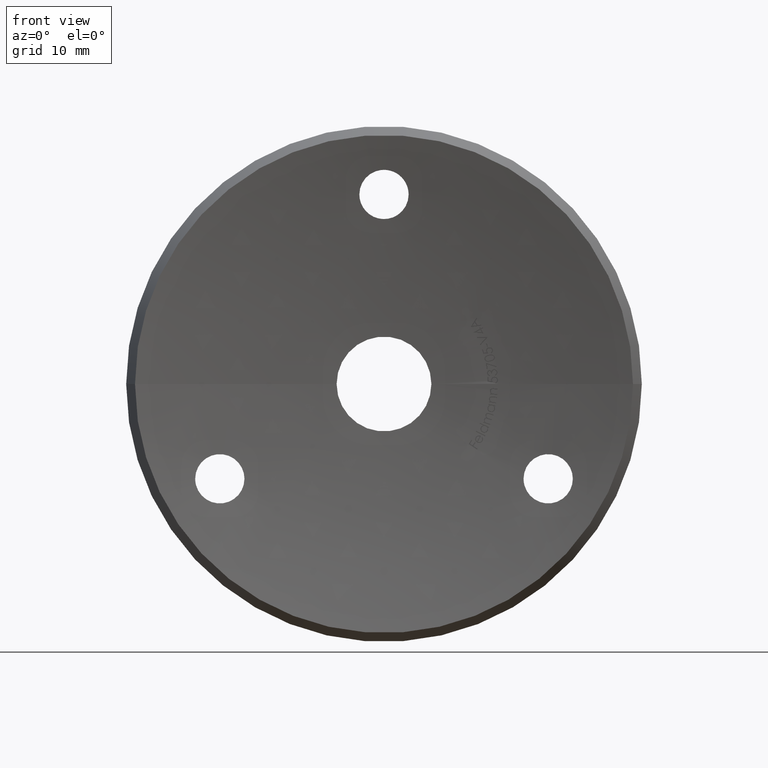
[diagram: clean part render]
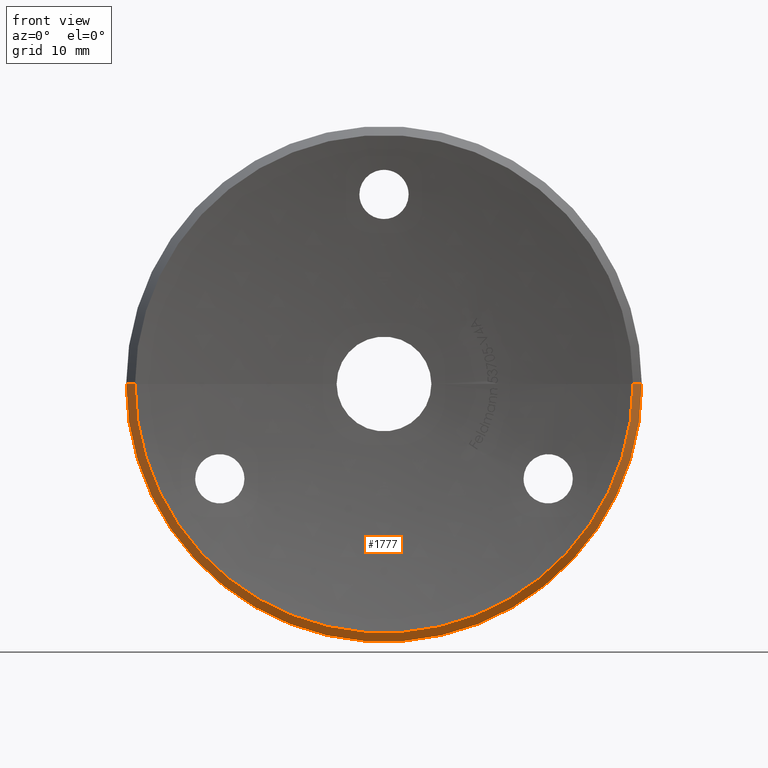
[diagram: same view with one face highlighted and labeled with its STEP entity id]
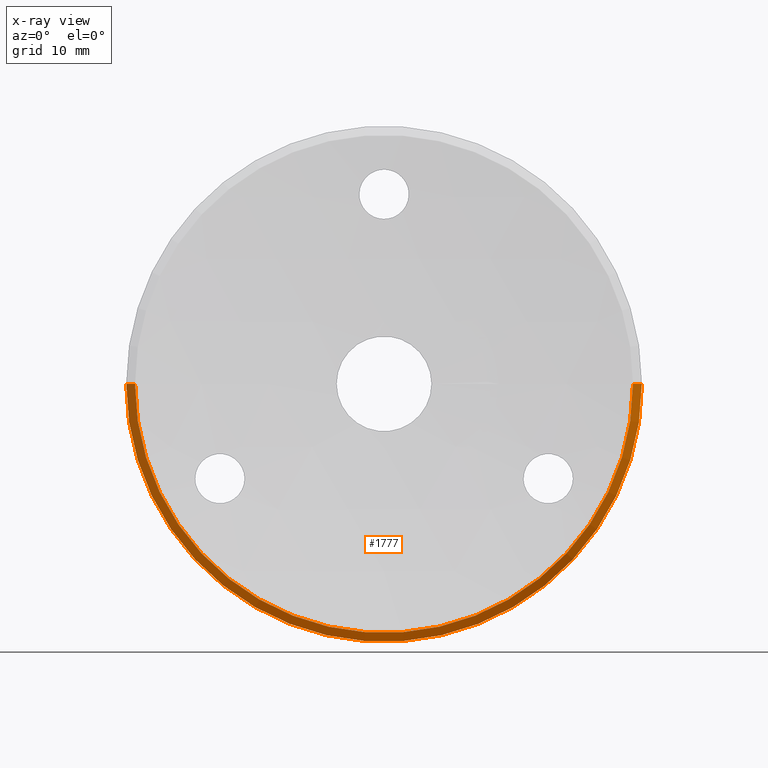
[diagram: x-ray of the same camera — body ghosted, the highlighted face saturated]
A machine part, front view. The second image highlights one B-rep face of the part: STEP entity #1777.
The next image is the same camera in x-ray: the body ghosted, the highlighted face saturated — about 0% of this face is hidden behind the body in this view.
In plain terms, the highlighted conical surface has half-angle 21.287 deg.
Its self-contained STEP definition (entity closure, byte-faithful):
#101 = CARTESIAN_POINT ( 'NONE',  ( -32.83464896222004370, -4.142427981893799682, 0.000000000000000000 ) ) ;
#150 = EDGE_CURVE ( 'NONE', #11164, #11643, #4963, .T. ) ;
#1233 = CARTESIAN_POINT ( 'NONE',  ( 7.761254698396231712E-19, -4.142427981893799682, 0.000000000000000000 ) ) ;
#1539 = VECTOR ( 'NONE', #5330, 1000.000000000000000 ) ;
#1777 = ADVANCED_FACE ( 'NONE', ( #4228 ), #10762, .T. ) ;
#1950 = DIRECTION ( 'NONE',  ( -1.873600393855974325E-19, 1.000000000000000000, -0.000000000000000000 ) ) ;
#2155 = EDGE_LOOP ( 'NONE', ( #8191, #6838, #7666, #7213 ) ) ;
#2840 = DIRECTION ( 'NONE',  ( -1.000000000000000000, 0.000000000000000000, 0.000000000000000000 ) ) ;
#3171 = VERTEX_POINT ( 'NONE', #6422 ) ;
#4003 = DIRECTION ( 'NONE',  ( -0.3630377064735174630, 0.9317744489298084298, 0.000000000000000000 ) ) ;
#4032 = LINE ( 'NONE', #6345, #1539 ) ;
#4228 = FACE_OUTER_BOUND ( 'NONE', #2155, .T. ) ;
#4412 = CIRCLE ( 'NONE', #6971, 34.00000000000002842 ) ;
#4963 = CIRCLE ( 'NONE', #10936, 32.83464896222004370 ) ;
#5231 = EDGE_CURVE ( 'NONE', #11164, #3171, #4032, .T. ) ;
#5330 = DIRECTION ( 'NONE',  ( 0.3630377064735174630, 0.9317744489298084298, 4.445929652025895394E-17 ) ) ;
#5474 = CARTESIAN_POINT ( 'NONE',  ( -34.00000000000002842, -1.151432000829118785, 0.000000000000000000 ) ) ;
#5570 = LINE ( 'NONE', #101, #8095 ) ;
#5584 = CARTESIAN_POINT ( 'NONE',  ( 2.157323450251809556E-19, -1.151432000829118785, 0.000000000000000000 ) ) ;
#5625 = CARTESIAN_POINT ( 'NONE',  ( 32.83464896222006502, -4.142427981893796129, 0.000000000000000000 ) ) ;
#5885 = AXIS2_PLACEMENT_3D ( 'NONE', #1233, #6899, #7854 ) ;
#6345 = CARTESIAN_POINT ( 'NONE',  ( 32.83464896222004370, -4.142427981893799682, 4.021084775270973901E-15 ) ) ;
#6422 = CARTESIAN_POINT ( 'NONE',  ( 34.00000000000002842, -1.151432000829118785, 4.163799117101004504E-15 ) ) ;
#6838 = ORIENTED_EDGE ( 'NONE', *, *, #150, .T. ) ;
#6899 = DIRECTION ( 'NONE',  ( -1.873600393855974325E-19, 1.000000000000000000, -0.000000000000000000 ) ) ;
#6971 = AXIS2_PLACEMENT_3D ( 'NONE', #5584, #1950, #2840 ) ;
#7213 = ORIENTED_EDGE ( 'NONE', *, *, #11080, .F. ) ;
#7666 = ORIENTED_EDGE ( 'NONE', *, *, #10202, .T. ) ;
#7854 = DIRECTION ( 'NONE',  ( -1.000000000000000000, 0.000000000000000000, 0.000000000000000000 ) ) ;
#8095 = VECTOR ( 'NONE', #4003, 1000.000000000000000 ) ;
#8097 = VERTEX_POINT ( 'NONE', #5474 ) ;
#8191 = ORIENTED_EDGE ( 'NONE', *, *, #5231, .F. ) ;
#9781 = CARTESIAN_POINT ( 'NONE',  ( -32.83464896222003659, -4.142427981893796129, -4.021084775270976268E-15 ) ) ;
#10202 = EDGE_CURVE ( 'NONE', #11643, #8097, #5570, .T. ) ;
#10314 = DIRECTION ( 'NONE',  ( -1.873600393855974325E-19, 1.000000000000000000, -0.000000000000000000 ) ) ;
#10762 = CONICAL_SURFACE ( 'NONE', #5885, 32.83464896222004370, 0.3715259619799057278 ) ;
#10936 = AXIS2_PLACEMENT_3D ( 'NONE', #11293, #10314, #12198 ) ;
#11080 = EDGE_CURVE ( 'NONE', #3171, #8097, #4412, .T. ) ;
#11164 = VERTEX_POINT ( 'NONE', #5625 ) ;
#11293 = CARTESIAN_POINT ( 'NONE',  ( 7.761254698396231712E-19, -4.142427981893799682, 0.000000000000000000 ) ) ;
#11643 = VERTEX_POINT ( 'NONE', #9781 ) ;
#12198 = DIRECTION ( 'NONE',  ( -1.000000000000000000, 0.000000000000000000, 0.000000000000000000 ) ) ;